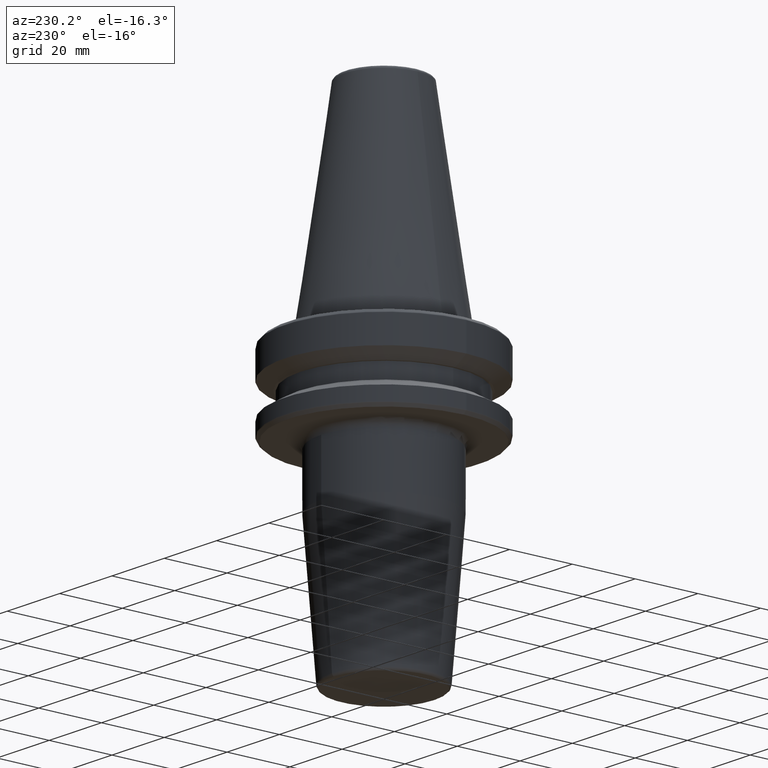
[diagram: clean part render]
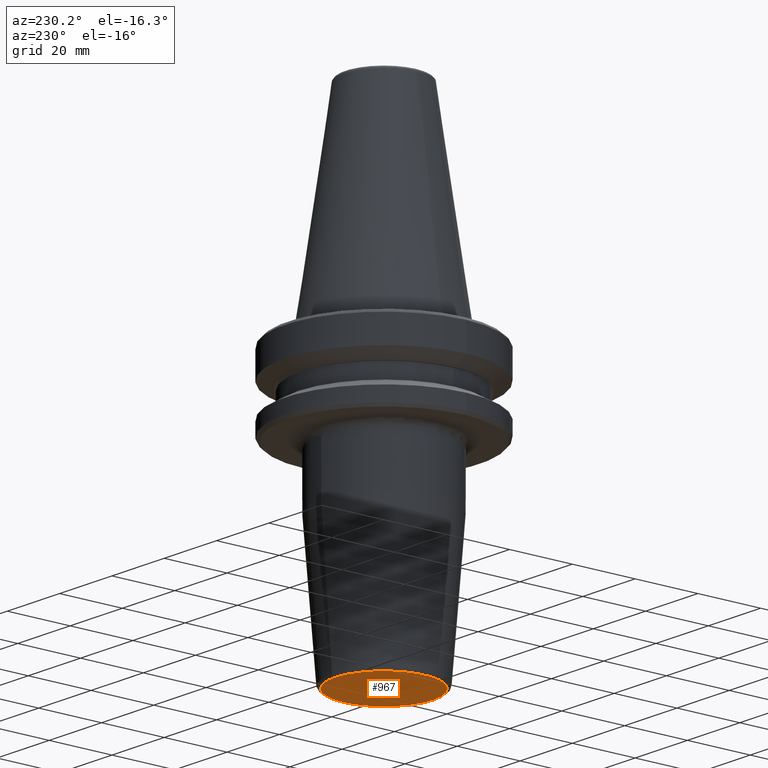
[diagram: same view with one face highlighted and labeled with its STEP entity id]
A machine part, auxiliary view. The second image highlights one B-rep face of the part: STEP entity #967.
In plain terms, the highlighted planar face has unit normal (0, -0, 1).
Its self-contained STEP definition (entity closure, byte-faithful):
#39 = CARTESIAN_POINT ( 'NONE',  ( 0.0000000000000000000, 15.57560950834179000, -90.00000000000000000 ) ) ;
#96 = EDGE_CURVE ( 'NONE', #190, #106, #130, .T. ) ;
#106 = VERTEX_POINT ( 'NONE', #39 ) ;
#130 = CIRCLE ( 'NONE', #1064, 15.57560950834178800 ) ;
#151 = DIRECTION ( 'NONE',  ( 0.0000000000000000000, -2.332660569804487100E-017, 1.000000000000000000 ) ) ;
#190 = VERTEX_POINT ( 'NONE', #535 ) ;
#247 = CARTESIAN_POINT ( 'NONE',  ( 0.0000000000000000000, 1.469576158976826700E-015, -90.00000000000000000 ) ) ;
#350 = DIRECTION ( 'NONE',  ( 0.0000000000000000000, 1.000000000000000000, 0.0000000000000000000 ) ) ;
#426 = EDGE_LOOP ( 'NONE', ( #933, #1100 ) ) ;
#448 = CARTESIAN_POINT ( 'NONE',  ( 0.0000000000000000000, 4.237582354840225600E-033, -90.00000000000000000 ) ) ;
#455 = DIRECTION ( 'NONE',  ( 0.0000000000000000000, 1.000000000000000000, 0.0000000000000000000 ) ) ;
#535 = CARTESIAN_POINT ( 'NONE',  ( 1.968505614004524300E-015, -15.57560950834178600, -90.00000000000000000 ) ) ;
#547 = CIRCLE ( 'NONE', #884, 15.57560950834178800 ) ;
#549 = PLANE ( 'NONE',  #1142 ) ;
#659 = DIRECTION ( 'NONE',  ( 0.0000000000000000000, -1.000000000000000000, -2.332660569804487100E-017 ) ) ;
#761 = CARTESIAN_POINT ( 'NONE',  ( 0.0000000000000000000, 1.469576158976826700E-015, -90.00000000000000000 ) ) ;
#884 = AXIS2_PLACEMENT_3D ( 'NONE', #247, #947, #350 ) ;
#933 = ORIENTED_EDGE ( 'NONE', *, *, #959, .T. ) ;
#947 = DIRECTION ( 'NONE',  ( -0.0000000000000000000, 2.332660569804487100E-017, -1.000000000000000000 ) ) ;
#959 = EDGE_CURVE ( 'NONE', #106, #190, #547, .T. ) ;
#967 = ADVANCED_FACE ( 'NONE', ( #1105 ), #549, .F. ) ;
#1064 = AXIS2_PLACEMENT_3D ( 'NONE', #761, #1219, #455 ) ;
#1100 = ORIENTED_EDGE ( 'NONE', *, *, #96, .T. ) ;
#1105 = FACE_OUTER_BOUND ( 'NONE', #426, .T. ) ;
#1142 = AXIS2_PLACEMENT_3D ( 'NONE', #448, #151, #659 ) ;
#1219 = DIRECTION ( 'NONE',  ( -0.0000000000000000000, 2.332660569804487100E-017, -1.000000000000000000 ) ) ;